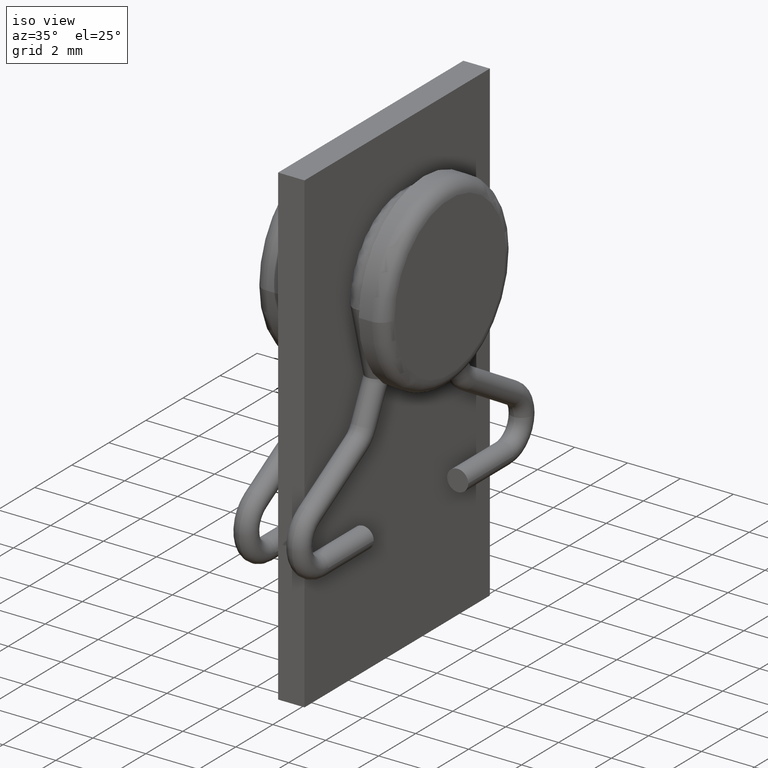
[diagram: clean part render]
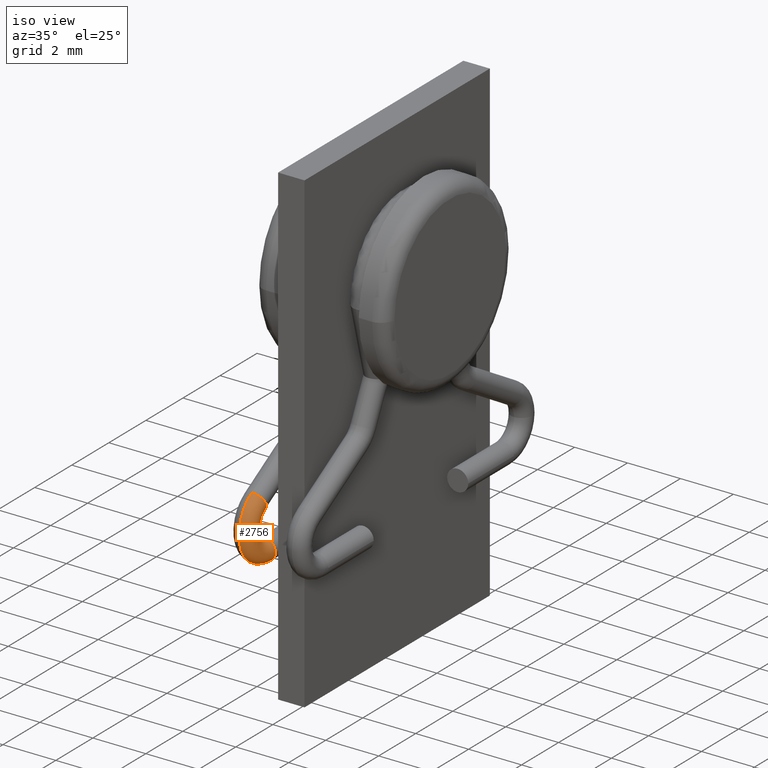
[diagram: same view with one face highlighted and labeled with its STEP entity id]
A machine part, iso view. The second image highlights one B-rep face of the part: STEP entity #2756.
In plain terms, the highlighted toroidal blend (fillet) surface has major radius 1 mm and minor (blend) radius 0.4 mm.
Its self-contained STEP definition (entity closure, byte-faithful):
#107 = FACE_OUTER_BOUND ( 'NONE', #1850, .T. ) ;
#160 = DIRECTION ( 'NONE',  ( -1.000000000000000000, 0.000000000000000000, 0.000000000000000000 ) ) ;
#384 = VERTEX_POINT ( 'NONE', #2895 ) ;
#478 = CIRCLE ( 'NONE', #1443, 0.3999999999999999667 ) ;
#510 = VERTEX_POINT ( 'NONE', #1269 ) ;
#572 = CIRCLE ( 'NONE', #681, 0.3999999999999999667 ) ;
#621 = CIRCLE ( 'NONE', #1397, 0.5999999999999998668 ) ;
#625 = EDGE_CURVE ( 'NONE', #2969, #384, #621, .T. ) ;
#681 = AXIS2_PLACEMENT_3D ( 'NONE', #2058, #1771, #1062 ) ;
#785 = CIRCLE ( 'NONE', #2114, 0.3999999999999999667 ) ;
#830 = DIRECTION ( 'NONE',  ( 5.310377987684109770E-16, 1.000000000000000000, -0.000000000000000000 ) ) ;
#880 = CARTESIAN_POINT ( 'NONE',  ( -1.000000000000002665, -4.999999999999995559, 4.600000000000000533 ) ) ;
#977 = VERTEX_POINT ( 'NONE', #1845 ) ;
#1005 = EDGE_CURVE ( 'NONE', #510, #2511, #478, .T. ) ;
#1062 = DIRECTION ( 'NONE',  ( -1.000000000000000000, 0.000000000000000000, 0.000000000000000000 ) ) ;
#1121 = DIRECTION ( 'NONE',  ( -1.000000000000000000, 3.794707603699264533E-16, 0.000000000000000000 ) ) ;
#1128 = CARTESIAN_POINT ( 'NONE',  ( -1.000000000000002665, -4.999999999999995559, 6.000000000000000000 ) ) ;
#1230 = CARTESIAN_POINT ( 'NONE',  ( -1.000000000000002665, -4.999999999999995559, 5.400000000000001243 ) ) ;
#1269 = CARTESIAN_POINT ( 'NONE',  ( -0.6000000000000028644, -4.999999999999995559, 5.000000000000000000 ) ) ;
#1397 = AXIS2_PLACEMENT_3D ( 'NONE', #2014, #2970, #2312 ) ;
#1443 = AXIS2_PLACEMENT_3D ( 'NONE', #2577, #2336, #160 ) ;
#1700 = EDGE_CURVE ( 'NONE', #384, #977, #572, .T. ) ;
#1771 = DIRECTION ( 'NONE',  ( -2.769644685656682055E-16, -0.8630376117627194255, -0.5051396645314063516 ) ) ;
#1807 = CIRCLE ( 'NONE', #2458, 1.399999999999999245 ) ;
#1845 = CARTESIAN_POINT ( 'NONE',  ( -1.000000000000002887, -5.707195530343964762, 7.208252656467807995 ) ) ;
#1850 = EDGE_LOOP ( 'NONE', ( #2885, #2551, #2416, #2135, #2131 ) ) ;
#1868 = CARTESIAN_POINT ( 'NONE',  ( -1.000000000000002665, -4.999999999999995559, 6.000000000000000000 ) ) ;
#2014 = CARTESIAN_POINT ( 'NONE',  ( -1.000000000000002665, -4.999999999999995559, 6.000000000000000000 ) ) ;
#2036 = DIRECTION ( 'NONE',  ( -1.000000000000000000, 0.000000000000000000, 0.000000000000000000 ) ) ;
#2043 = DIRECTION ( 'NONE',  ( 3.794707603699265026E-16, 1.000000000000000000, 0.000000000000000000 ) ) ;
#2058 = CARTESIAN_POINT ( 'NONE',  ( -1.000000000000002887, -5.505139664531401245, 6.863037611762718093 ) ) ;
#2096 = DIRECTION ( 'NONE',  ( -1.000000000000000000, 3.794707603699264533E-16, 0.000000000000000000 ) ) ;
#2114 = AXIS2_PLACEMENT_3D ( 'NONE', #2995, #830, #2036 ) ;
#2131 = ORIENTED_EDGE ( 'NONE', *, *, #1700, .T. ) ;
#2135 = ORIENTED_EDGE ( 'NONE', *, *, #625, .T. ) ;
#2292 = EDGE_CURVE ( 'NONE', #2969, #510, #785, .T. ) ;
#2312 = DIRECTION ( 'NONE',  ( -3.614007241618348771E-16, -1.000000000000000000, 0.000000000000000000 ) ) ;
#2336 = DIRECTION ( 'NONE',  ( 5.310377987684109770E-16, 1.000000000000000000, -0.000000000000000000 ) ) ;
#2416 = ORIENTED_EDGE ( 'NONE', *, *, #2292, .F. ) ;
#2451 = EDGE_CURVE ( 'NONE', #2511, #977, #1807, .T. ) ;
#2458 = AXIS2_PLACEMENT_3D ( 'NONE', #1868, #1121, #2809 ) ;
#2511 = VERTEX_POINT ( 'NONE', #880 ) ;
#2516 = AXIS2_PLACEMENT_3D ( 'NONE', #1128, #2096, #2043 ) ;
#2551 = ORIENTED_EDGE ( 'NONE', *, *, #1005, .F. ) ;
#2570 = TOROIDAL_SURFACE ( 'NONE', #2516, 0.9999999999999993339, 0.3999999999999999667 ) ;
#2577 = CARTESIAN_POINT ( 'NONE',  ( -1.000000000000002887, -4.999999999999995559, 5.000000000000000888 ) ) ;
#2756 = ADVANCED_FACE ( 'NONE', ( #107 ), #2570, .T. ) ;
#2809 = DIRECTION ( 'NONE',  ( -3.097720492815728645E-16, -1.000000000000000000, 0.000000000000000000 ) ) ;
#2885 = ORIENTED_EDGE ( 'NONE', *, *, #2451, .F. ) ;
#2895 = CARTESIAN_POINT ( 'NONE',  ( -1.000000000000002887, -5.303083798718839503, 6.517822567057631744 ) ) ;
#2969 = VERTEX_POINT ( 'NONE', #1230 ) ;
#2970 = DIRECTION ( 'NONE',  ( -1.000000000000000000, 3.794707603699264533E-16, 0.000000000000000000 ) ) ;
#2995 = CARTESIAN_POINT ( 'NONE',  ( -1.000000000000002887, -4.999999999999995559, 5.000000000000000888 ) ) ;